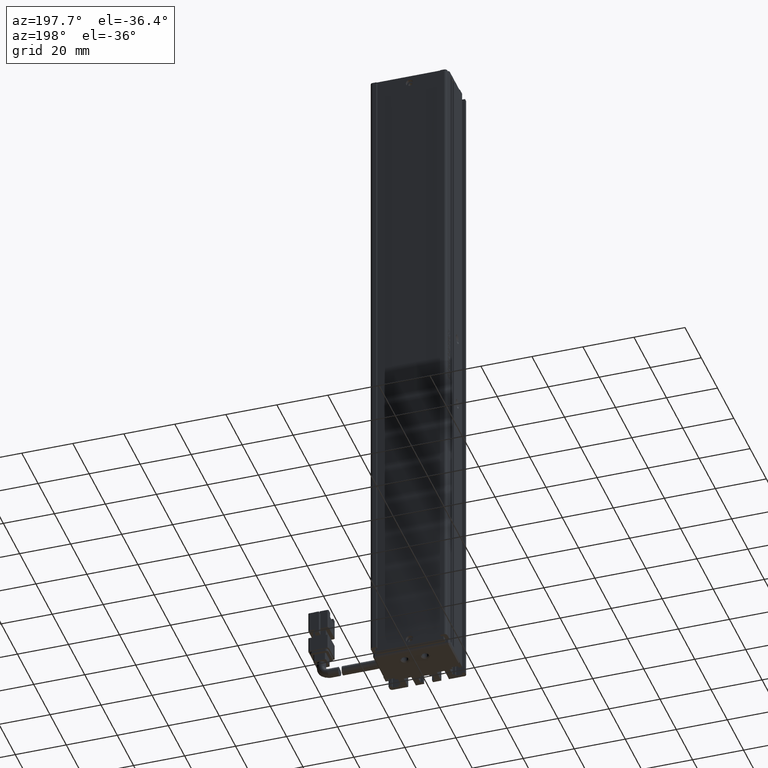
[diagram: clean part render]
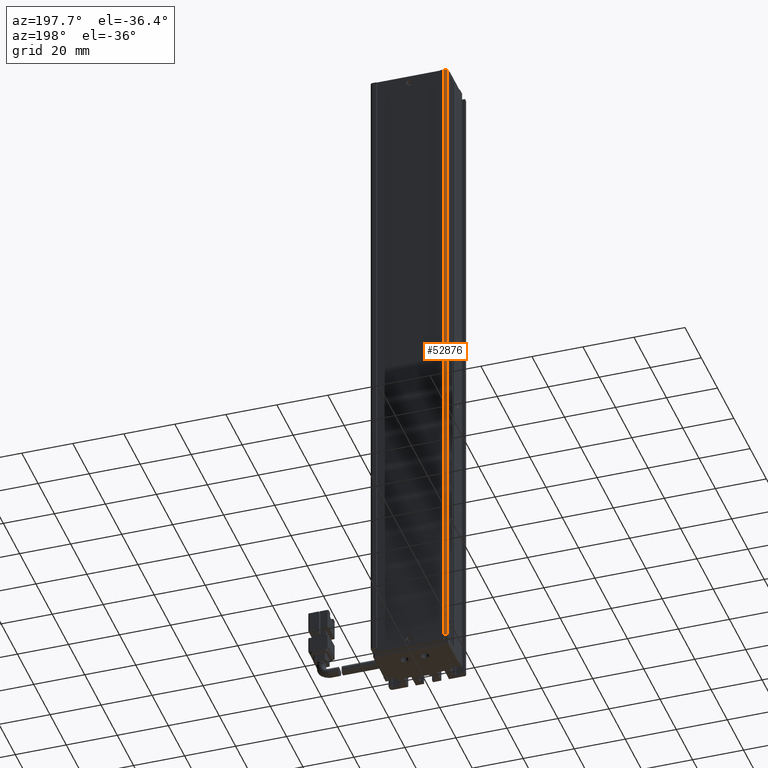
[diagram: same view with one face highlighted and labeled with its STEP entity id]
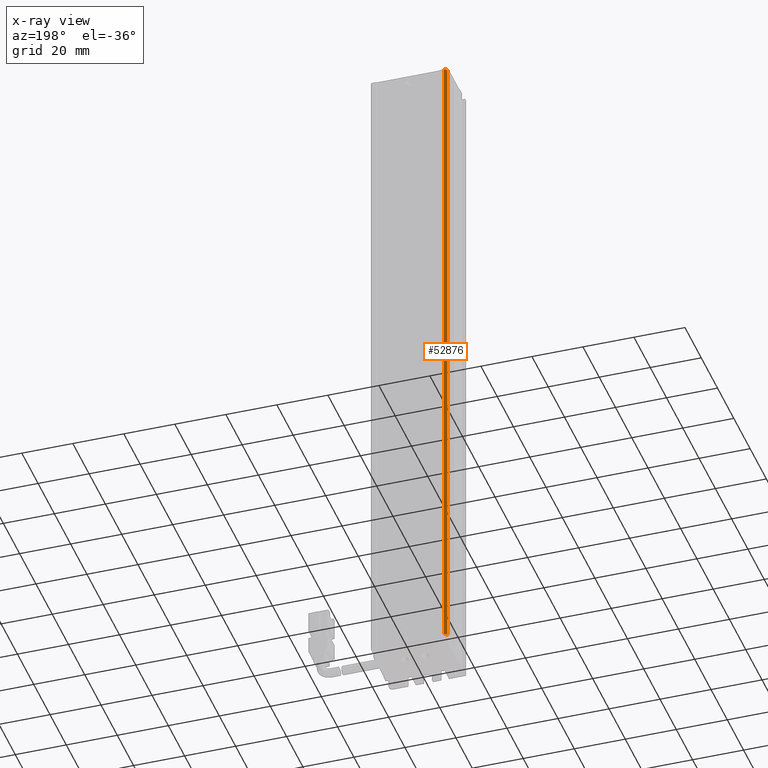
[diagram: x-ray of the same camera — body ghosted, the highlighted face saturated]
A machine part, auxiliary view. The second image highlights one B-rep face of the part: STEP entity #52876.
The next image is the same camera in x-ray: the body ghosted, the highlighted face saturated — about 0% of this face is hidden behind the body in this view.
In plain terms, the highlighted cylindrical surface (edge-blend (fillet) strip) has radius 1 mm, axis along (-0, -0, -1).
Its self-contained STEP definition (entity closure, byte-faithful):
#2018 = CARTESIAN_POINT ( 'NONE',  ( 26.92537974683542100, 35.69594479660387500, 16.00000000000000000 ) ) ;
#2780 = EDGE_CURVE ( 'NONE', #20698, #51807, #31981, .T. ) ;
#3428 = EDGE_CURVE ( 'NONE', #51807, #50971, #33149, .T. ) ;
#3596 = AXIS2_PLACEMENT_3D ( 'NONE', #36488, #33148, #32950 ) ;
#4850 = DIRECTION ( 'NONE',  ( -1.000000000000000000, 0.0000000000000000000, 0.0000000000000000000 ) ) ;
#9702 = CARTESIAN_POINT ( 'NONE',  ( 26.92537974683542100, 35.69594479660387500, -246.0000000000000000 ) ) ;
#12284 = EDGE_CURVE ( 'NONE', #20698, #29844, #38374, .T. ) ;
#13898 = FACE_OUTER_BOUND ( 'NONE', #23040, .T. ) ;
#15449 = ORIENTED_EDGE ( 'NONE', *, *, #2780, .T. ) ;
#16850 = CARTESIAN_POINT ( 'NONE',  ( 26.92537974683542100, 34.69594479660387500, -246.0000000000000000 ) ) ;
#18136 = CARTESIAN_POINT ( 'NONE',  ( 26.92537974683542100, 35.69594479660387500, 18.00000000000000400 ) ) ;
#19133 = DIRECTION ( 'NONE',  ( -0.0000000000000000000, -0.0000000000000000000, -1.000000000000000000 ) ) ;
#20011 = AXIS2_PLACEMENT_3D ( 'NONE', #30534, #43294, #4850 ) ;
#20698 = VERTEX_POINT ( 'NONE', #24998 ) ;
#21134 = DIRECTION ( 'NONE',  ( -1.000000000000000000, 0.0000000000000000000, 0.0000000000000000000 ) ) ;
#21961 = EDGE_CURVE ( 'NONE', #50971, #29844, #52131, .T. ) ;
#23040 = EDGE_LOOP ( 'NONE', ( #39679, #27384, #15449, #35565 ) ) ;
#24998 = CARTESIAN_POINT ( 'NONE',  ( 25.92537974683541800, 34.69594479660387500, 16.00000000000000000 ) ) ;
#27384 = ORIENTED_EDGE ( 'NONE', *, *, #12284, .F. ) ;
#29844 = VERTEX_POINT ( 'NONE', #43721 ) ;
#30534 = CARTESIAN_POINT ( 'NONE',  ( 26.92537974683542100, 34.69594479660387500, 18.00000000000000400 ) ) ;
#31335 = CYLINDRICAL_SURFACE ( 'NONE', #20011, 0.9999999999999974500 ) ;
#31981 = CIRCLE ( 'NONE', #3596, 0.9999999999999974500 ) ;
#32950 = DIRECTION ( 'NONE',  ( -1.000000000000000000, 0.0000000000000000000, 0.0000000000000000000 ) ) ;
#33148 = DIRECTION ( 'NONE',  ( -0.0000000000000000000, -0.0000000000000000000, -1.000000000000000000 ) ) ;
#33149 = LINE ( 'NONE', #18136, #54465 ) ;
#35565 = ORIENTED_EDGE ( 'NONE', *, *, #3428, .T. ) ;
#36488 = CARTESIAN_POINT ( 'NONE',  ( 26.92537974683542100, 34.69594479660387500, 16.00000000000000000 ) ) ;
#38374 = LINE ( 'NONE', #41026, #48353 ) ;
#39679 = ORIENTED_EDGE ( 'NONE', *, *, #21961, .T. ) ;
#40669 = DIRECTION ( 'NONE',  ( -0.0000000000000000000, -0.0000000000000000000, -1.000000000000000000 ) ) ;
#41026 = CARTESIAN_POINT ( 'NONE',  ( 25.92537974683541800, 34.69594479660387500, 18.00000000000000400 ) ) ;
#43294 = DIRECTION ( 'NONE',  ( -0.0000000000000000000, -0.0000000000000000000, -1.000000000000000000 ) ) ;
#43721 = CARTESIAN_POINT ( 'NONE',  ( 25.92537974683541800, 34.69594479660387500, -246.0000000000000000 ) ) ;
#46737 = DIRECTION ( 'NONE',  ( 0.0000000000000000000, 0.0000000000000000000, 1.000000000000000000 ) ) ;
#47628 = AXIS2_PLACEMENT_3D ( 'NONE', #16850, #46737, #21134 ) ;
#48353 = VECTOR ( 'NONE', #40669, 1000.000000000000000 ) ;
#50971 = VERTEX_POINT ( 'NONE', #9702 ) ;
#51807 = VERTEX_POINT ( 'NONE', #2018 ) ;
#52131 = CIRCLE ( 'NONE', #47628, 0.9999999999999974500 ) ;
#52876 = ADVANCED_FACE ( 'NONE', ( #13898 ), #31335, .T. ) ;
#54465 = VECTOR ( 'NONE', #19133, 1000.000000000000000 ) ;